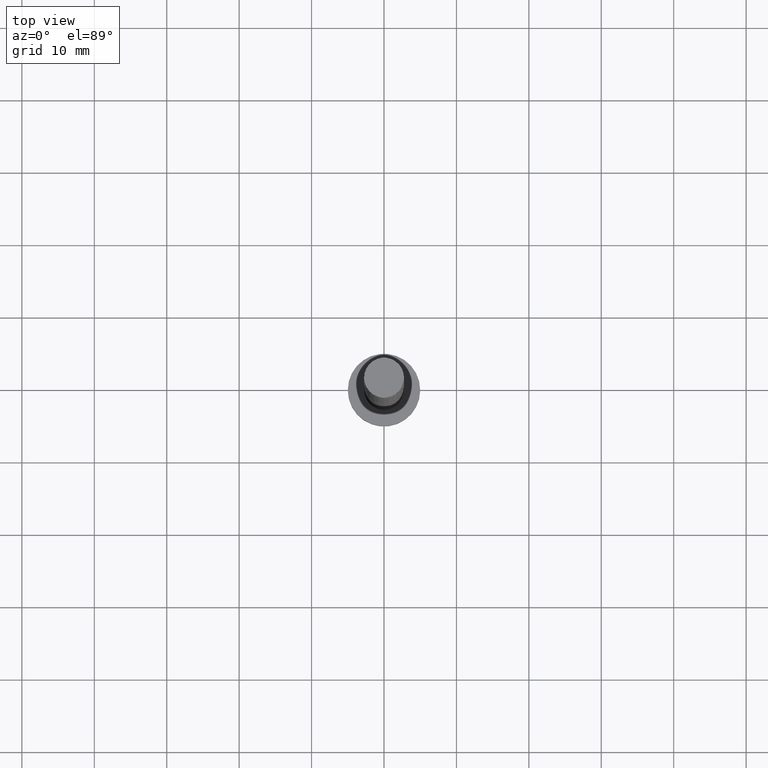
[diagram: clean part render]
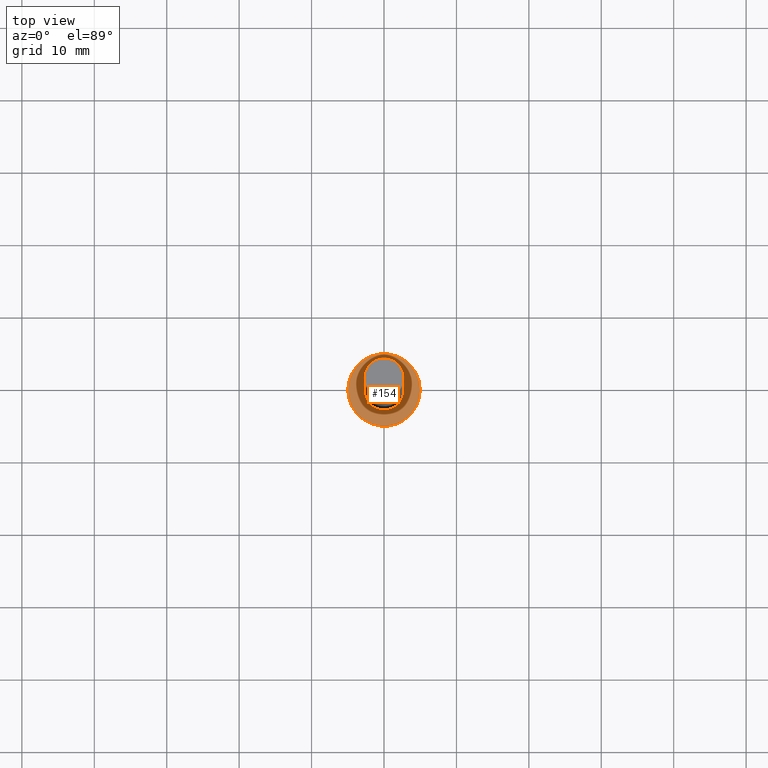
[diagram: same view with one face highlighted and labeled with its STEP entity id]
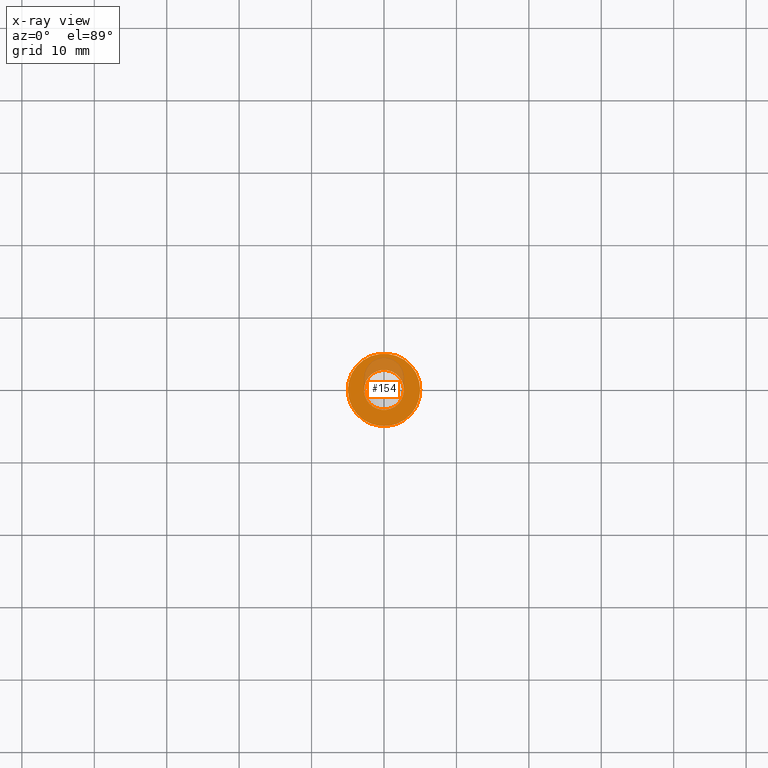
[diagram: x-ray of the same camera — body ghosted, the highlighted face saturated]
A machine part, top view. The second image highlights one B-rep face of the part: STEP entity #154.
The next image is the same camera in x-ray: the body ghosted, the highlighted face saturated — about 17% of this face is hidden behind the body in this view.
In plain terms, the highlighted planar face has unit normal (0, 0, 1).
Its self-contained STEP definition (entity closure, byte-faithful):
#8 = VERTEX_POINT ( 'NONE', #1074 ) ;
#113 = CIRCLE ( 'NONE', #1360, 2.750000000000000000 ) ;
#154 = ADVANCED_FACE ( 'NONE', ( #771, #310 ), #1437, .T. ) ;
#195 = DIRECTION ( 'NONE',  ( 1.000000000000000000, 0.000000000000000000, -0.000000000000000000 ) ) ;
#210 = DIRECTION ( 'NONE',  ( 1.000000000000000000, 0.000000000000000000, 0.000000000000000000 ) ) ;
#237 = VERTEX_POINT ( 'NONE', #1460 ) ;
#256 = CARTESIAN_POINT ( 'NONE',  ( 0.000000000000000000, 0.000000000000000000, 3.000000000000000000 ) ) ;
#310 = FACE_OUTER_BOUND ( 'NONE', #944, .T. ) ;
#331 = DIRECTION ( 'NONE',  ( 1.000000000000000000, 0.000000000000000000, 0.000000000000000000 ) ) ;
#452 = CIRCLE ( 'NONE', #1188, 5.000000000000000000 ) ;
#479 = ORIENTED_EDGE ( 'NONE', *, *, #615, .F. ) ;
#500 = AXIS2_PLACEMENT_3D ( 'NONE', #979, #1440, #331 ) ;
#537 = CARTESIAN_POINT ( 'NONE',  ( 2.750000000000000000, 3.367778697655220519E-16, 3.000000000000000000 ) ) ;
#587 = VERTEX_POINT ( 'NONE', #537 ) ;
#615 = EDGE_CURVE ( 'NONE', #8, #587, #113, .T. ) ;
#637 = CARTESIAN_POINT ( 'NONE',  ( 0.000000000000000000, 0.000000000000000000, 3.000000000000000000 ) ) ;
#646 = DIRECTION ( 'NONE',  ( 0.000000000000000000, 0.000000000000000000, 1.000000000000000000 ) ) ;
#652 = CARTESIAN_POINT ( 'NONE',  ( -5.000000000000000000, 0.000000000000000000, 3.000000000000000000 ) ) ;
#666 = ORIENTED_EDGE ( 'NONE', *, *, #1212, .F. ) ;
#673 = EDGE_LOOP ( 'NONE', ( #479, #666 ) ) ;
#705 = DIRECTION ( 'NONE',  ( 0.000000000000000000, 0.000000000000000000, 1.000000000000000000 ) ) ;
#756 = CARTESIAN_POINT ( 'NONE',  ( 0.000000000000000000, 0.000000000000000000, 3.000000000000000000 ) ) ;
#771 = FACE_BOUND ( 'NONE', #673, .T. ) ;
#777 = AXIS2_PLACEMENT_3D ( 'NONE', #637, #1323, #1206 ) ;
#871 = DIRECTION ( 'NONE',  ( 0.000000000000000000, 0.000000000000000000, 1.000000000000000000 ) ) ;
#881 = EDGE_CURVE ( 'NONE', #237, #1245, #452, .T. ) ;
#944 = EDGE_LOOP ( 'NONE', ( #1269, #1114 ) ) ;
#979 = CARTESIAN_POINT ( 'NONE',  ( 0.000000000000000000, 0.000000000000000000, 3.000000000000000000 ) ) ;
#1067 = CIRCLE ( 'NONE', #777, 2.750000000000000000 ) ;
#1074 = CARTESIAN_POINT ( 'NONE',  ( -2.750000000000000000, 0.000000000000000000, 3.000000000000000000 ) ) ;
#1114 = ORIENTED_EDGE ( 'NONE', *, *, #881, .T. ) ;
#1148 = EDGE_CURVE ( 'NONE', #1245, #237, #1262, .T. ) ;
#1164 = DIRECTION ( 'NONE',  ( 1.000000000000000000, 0.000000000000000000, 0.000000000000000000 ) ) ;
#1188 = AXIS2_PLACEMENT_3D ( 'NONE', #256, #705, #1164 ) ;
#1206 = DIRECTION ( 'NONE',  ( 1.000000000000000000, 0.000000000000000000, 0.000000000000000000 ) ) ;
#1212 = EDGE_CURVE ( 'NONE', #587, #8, #1067, .T. ) ;
#1227 = AXIS2_PLACEMENT_3D ( 'NONE', #756, #871, #195 ) ;
#1245 = VERTEX_POINT ( 'NONE', #652 ) ;
#1262 = CIRCLE ( 'NONE', #500, 5.000000000000000000 ) ;
#1269 = ORIENTED_EDGE ( 'NONE', *, *, #1148, .T. ) ;
#1323 = DIRECTION ( 'NONE',  ( 0.000000000000000000, 0.000000000000000000, 1.000000000000000000 ) ) ;
#1326 = CARTESIAN_POINT ( 'NONE',  ( 0.000000000000000000, 0.000000000000000000, 3.000000000000000000 ) ) ;
#1360 = AXIS2_PLACEMENT_3D ( 'NONE', #1326, #646, #210 ) ;
#1437 = PLANE ( 'NONE',  #1227 ) ;
#1440 = DIRECTION ( 'NONE',  ( 0.000000000000000000, 0.000000000000000000, 1.000000000000000000 ) ) ;
#1460 = CARTESIAN_POINT ( 'NONE',  ( 5.000000000000000000, 6.123233995736766282E-16, 3.000000000000000000 ) ) ;